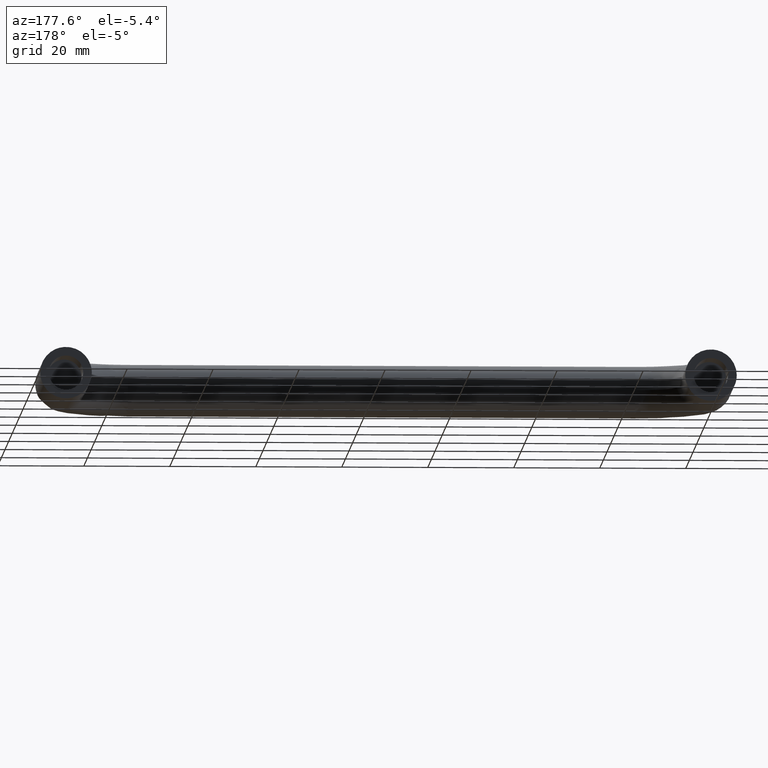
[diagram: clean part render]
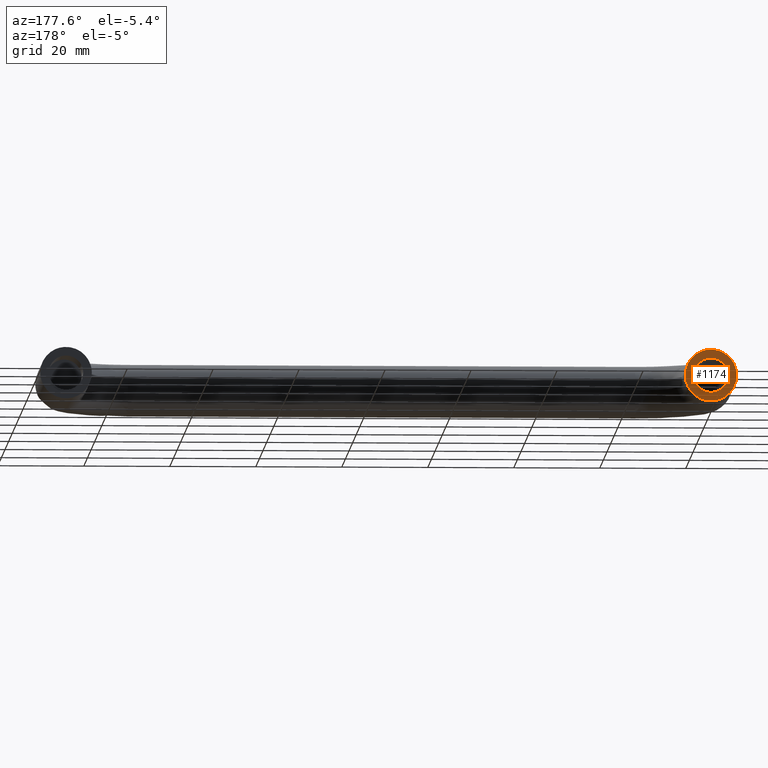
[diagram: same view with one face highlighted and labeled with its STEP entity id]
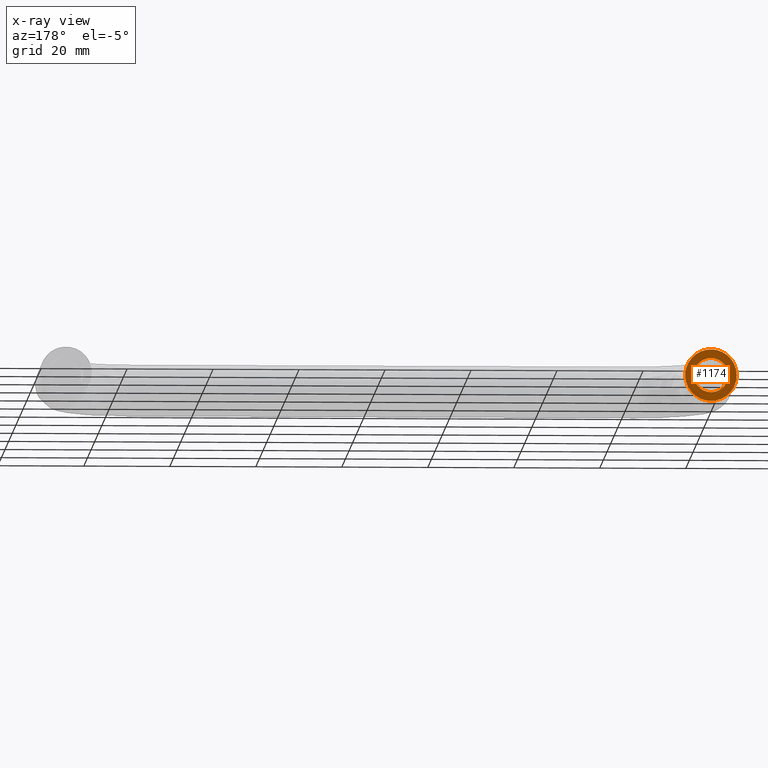
[diagram: x-ray of the same camera — body ghosted, the highlighted face saturated]
A machine part, auxiliary view. The second image highlights one B-rep face of the part: STEP entity #1174.
The next image is the same camera in x-ray: the body ghosted, the highlighted face saturated — about 0% of this face is hidden behind the body in this view.
In plain terms, the highlighted face is a freeform B-spline surface patch.
Its self-contained STEP definition (entity closure, byte-faithful):
#932=CARTESIAN_POINT('',(-3.987669334880896,-2.775558E-017,0.313836383567221));
#933=VERTEX_POINT('',#932);
#939=CARTESIAN_POINT('',(0.0,0.0,4.0));
#940=VERTEX_POINT('',#939);
#941=CARTESIAN_POINT('',(0.0,0.0,4.0));
#942=CARTESIAN_POINT('',(-3.697561966022820,0.0,4.0));
#943=CARTESIAN_POINT('',(-3.987669334880896,0.0,0.313836383567220));
#951=(BOUNDED_CURVE()B_SPLINE_CURVE(2,(#941,#942,#943),.UNSPECIFIED.,.F.,.U.)B_SPLINE_CURVE_WITH_KNOTS((3,3),(0.0,0.236331300604573),.UNSPECIFIED.)CURVE()GEOMETRIC_REPRESENTATION_ITEM()RATIONAL_B_SPLINE_CURVE((1.0,0.723120658638228,0.969723356112977))REPRESENTATION_ITEM(''));
#952=EDGE_CURVE('',#940,#933,#951,.T.);
#954=CARTESIAN_POINT('',(3.987669334880896,-2.775558E-017,-0.313836383567221));
#955=VERTEX_POINT('',#954);
#956=CARTESIAN_POINT('',(3.987669334880896,0.0,-0.313836383567220));
#957=CARTESIAN_POINT('',(4.000000000000000,0.0,-0.157160428360121));
#958=CARTESIAN_POINT('',(4.0,0.0,0.0));
#959=CARTESIAN_POINT('',(4.000000000000000,0.0,4.000000000000000));
#960=CARTESIAN_POINT('',(0.0,0.0,4.0));
#968=(BOUNDED_CURVE()B_SPLINE_CURVE(2,(#956,#957,#958,#959,#960),.UNSPECIFIED.,.F.,.U.)B_SPLINE_CURVE_WITH_KNOTS((3,2,3),(0.736331300604573,0.750000000000000,1.0),.UNSPECIFIED.)CURVE()GEOMETRIC_REPRESENTATION_ITEM()RATIONAL_B_SPLINE_CURVE((0.969723356112977,0.983986122548320,1.0,0.707106781186548,1.0))REPRESENTATION_ITEM(''));
#969=EDGE_CURVE('',#955,#940,#968,.T.);
#1001=CARTESIAN_POINT('',(0.0,0.0,-4.0));
#1002=VERTEX_POINT('',#1001);
#1003=CARTESIAN_POINT('',(0.0,0.0,-4.0));
#1004=CARTESIAN_POINT('',(3.697561966022820,0.0,-4.0));
#1005=CARTESIAN_POINT('',(3.987669334880896,0.0,-0.313836383567220));
#1013=(BOUNDED_CURVE()B_SPLINE_CURVE(2,(#1003,#1004,#1005),.UNSPECIFIED.,.F.,.U.)B_SPLINE_CURVE_WITH_KNOTS((3,3),(0.500000000000000,0.736331300604573),.UNSPECIFIED.)CURVE()GEOMETRIC_REPRESENTATION_ITEM()RATIONAL_B_SPLINE_CURVE((1.0,0.723120658638228,0.969723356112977))REPRESENTATION_ITEM(''));
#1014=EDGE_CURVE('',#1002,#955,#1013,.T.);
#1016=CARTESIAN_POINT('',(-3.987669334880896,0.0,0.313836383567220));
#1017=CARTESIAN_POINT('',(-4.000000000000000,0.0,0.157160428360121));
#1018=CARTESIAN_POINT('',(-4.0,0.0,0.0));
#1019=CARTESIAN_POINT('',(-4.000000000000000,0.0,-4.000000000000000));
#1020=CARTESIAN_POINT('',(0.0,0.0,-4.0));
#1028=(BOUNDED_CURVE()B_SPLINE_CURVE(2,(#1016,#1017,#1018,#1019,#1020),.UNSPECIFIED.,.F.,.U.)B_SPLINE_CURVE_WITH_KNOTS((3,2,3),(0.236331300604573,0.250000000000000,0.500000000000000),.UNSPECIFIED.)CURVE()GEOMETRIC_REPRESENTATION_ITEM()RATIONAL_B_SPLINE_CURVE((0.969723356112977,0.983986122548320,1.0,0.707106781186548,1.0))REPRESENTATION_ITEM(''));
#1029=EDGE_CURVE('',#933,#1002,#1028,.T.);
#1054=CARTESIAN_POINT('',(0.470754574599393,-2.220446E-016,-5.981504002380483));
#1055=VERTEX_POINT('',#1054);
#1061=CARTESIAN_POINT('',(6.0,0.0,0.0));
#1062=VERTEX_POINT('',#1061);
#1063=CARTESIAN_POINT('',(6.0,0.0,0.0));
#1064=CARTESIAN_POINT('',(6.0,0.0,-5.546342949733154));
#1065=CARTESIAN_POINT('',(0.470754574599393,0.0,-5.981504002380484));
#1073=(BOUNDED_CURVE()B_SPLINE_CURVE(2,(#1063,#1064,#1065),.UNSPECIFIED.,.F.,.U.)B_SPLINE_CURVE_WITH_KNOTS((3,3),(0.0,0.236331300626109),.UNSPECIFIED.)CURVE()GEOMETRIC_REPRESENTATION_ITEM()RATIONAL_B_SPLINE_CURVE((1.0,0.723120658612997,0.969723356157920))REPRESENTATION_ITEM(''));
#1074=EDGE_CURVE('',#1062,#1055,#1073,.T.);
#1076=CARTESIAN_POINT('',(-0.470754574599393,-3.330669E-016,5.981504002380483));
#1077=VERTEX_POINT('',#1076);
#1078=CARTESIAN_POINT('',(-0.470754574599392,0.0,5.981504002380484));
#1079=CARTESIAN_POINT('',(-0.235740642162718,0.0,6.0));
#1080=CARTESIAN_POINT('',(0.0,0.0,6.0));
#1081=CARTESIAN_POINT('',(6.0,0.0,6.0));
#1082=CARTESIAN_POINT('',(6.0,0.0,0.0));
#1090=(BOUNDED_CURVE()B_SPLINE_CURVE(2,(#1078,#1079,#1080,#1081,#1082),.UNSPECIFIED.,.F.,.U.)B_SPLINE_CURVE_WITH_KNOTS((3,2,3),(0.736331300626109,0.750000000000000,1.0),.UNSPECIFIED.)CURVE()GEOMETRIC_REPRESENTATION_ITEM()RATIONAL_B_SPLINE_CURVE((0.969723356157920,0.983986122573550,1.0,0.707106781186548,1.0))REPRESENTATION_ITEM(''));
#1091=EDGE_CURVE('',#1077,#1062,#1090,.T.);
#1123=CARTESIAN_POINT('',(-6.0,0.0,0.0));
#1124=VERTEX_POINT('',#1123);
#1125=CARTESIAN_POINT('',(-6.0,0.0,0.0));
#1126=CARTESIAN_POINT('',(-6.0,0.0,5.546342949733156));
#1127=CARTESIAN_POINT('',(-0.470754574599392,0.0,5.981504002380484));
#1135=(BOUNDED_CURVE()B_SPLINE_CURVE(2,(#1125,#1126,#1127),.UNSPECIFIED.,.F.,.U.)B_SPLINE_CURVE_WITH_KNOTS((3,3),(0.500000000000000,0.736331300626109),.UNSPECIFIED.)CURVE()GEOMETRIC_REPRESENTATION_ITEM()RATIONAL_B_SPLINE_CURVE((1.0,0.723120658612997,0.969723356157920))REPRESENTATION_ITEM(''));
#1136=EDGE_CURVE('',#1124,#1077,#1135,.T.);
#1138=CARTESIAN_POINT('',(0.470754574599393,0.0,-5.981504002380484));
#1139=CARTESIAN_POINT('',(0.235740642162719,0.0,-6.0));
#1140=CARTESIAN_POINT('',(0.0,0.0,-6.0));
#1141=CARTESIAN_POINT('',(-6.0,0.0,-6.0));
#1142=CARTESIAN_POINT('',(-6.0,0.0,0.0));
#1150=(BOUNDED_CURVE()B_SPLINE_CURVE(2,(#1138,#1139,#1140,#1141,#1142),.UNSPECIFIED.,.F.,.U.)B_SPLINE_CURVE_WITH_KNOTS((3,2,3),(0.236331300626109,0.250000000000000,0.500000000000000),.UNSPECIFIED.)CURVE()GEOMETRIC_REPRESENTATION_ITEM()RATIONAL_B_SPLINE_CURVE((0.969723356157920,0.983986122573550,1.0,0.707106781186548,1.0))REPRESENTATION_ITEM(''));
#1151=EDGE_CURVE('',#1055,#1124,#1150,.T.);
#1157=CARTESIAN_POINT('',(-6.599399976741671,0.0,-6.597568516360731));
#1158=CARTESIAN_POINT('',(6.599400298606753,0.0,-6.597568516360731));
#1159=CARTESIAN_POINT('',(-6.599399976741671,0.0,6.597568838225813));
#1160=CARTESIAN_POINT('',(6.599400298606753,0.0,6.597568838225813));
#1161=B_SPLINE_SURFACE_WITH_KNOTS('',1,1,((#1157,#1159),(#1158,#1160)),.UNSPECIFIED.,.F.,.F.,.U.,(2,2),(2,2),(0.0,13.198800275348420),(0.0,13.195137354586540),.UNSPECIFIED.);
#1162=ORIENTED_EDGE('',*,*,#1074,.T.);
#1163=ORIENTED_EDGE('',*,*,#1151,.T.);
#1164=ORIENTED_EDGE('',*,*,#1136,.T.);
#1165=ORIENTED_EDGE('',*,*,#1091,.T.);
#1166=EDGE_LOOP('',(#1162,#1163,#1164,#1165));
#1167=FACE_OUTER_BOUND('',#1166,.T.);
#1168=ORIENTED_EDGE('',*,*,#1014,.T.);
#1169=ORIENTED_EDGE('',*,*,#969,.T.);
#1170=ORIENTED_EDGE('',*,*,#952,.T.);
#1171=ORIENTED_EDGE('',*,*,#1029,.T.);
#1172=EDGE_LOOP('',(#1168,#1169,#1170,#1171));
#1173=FACE_BOUND('',#1172,.T.);
#1174=ADVANCED_FACE('',(#1167,#1173),#1161,.F.);